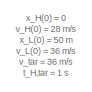
[diagram: root canvas - part 1/4, top left region]
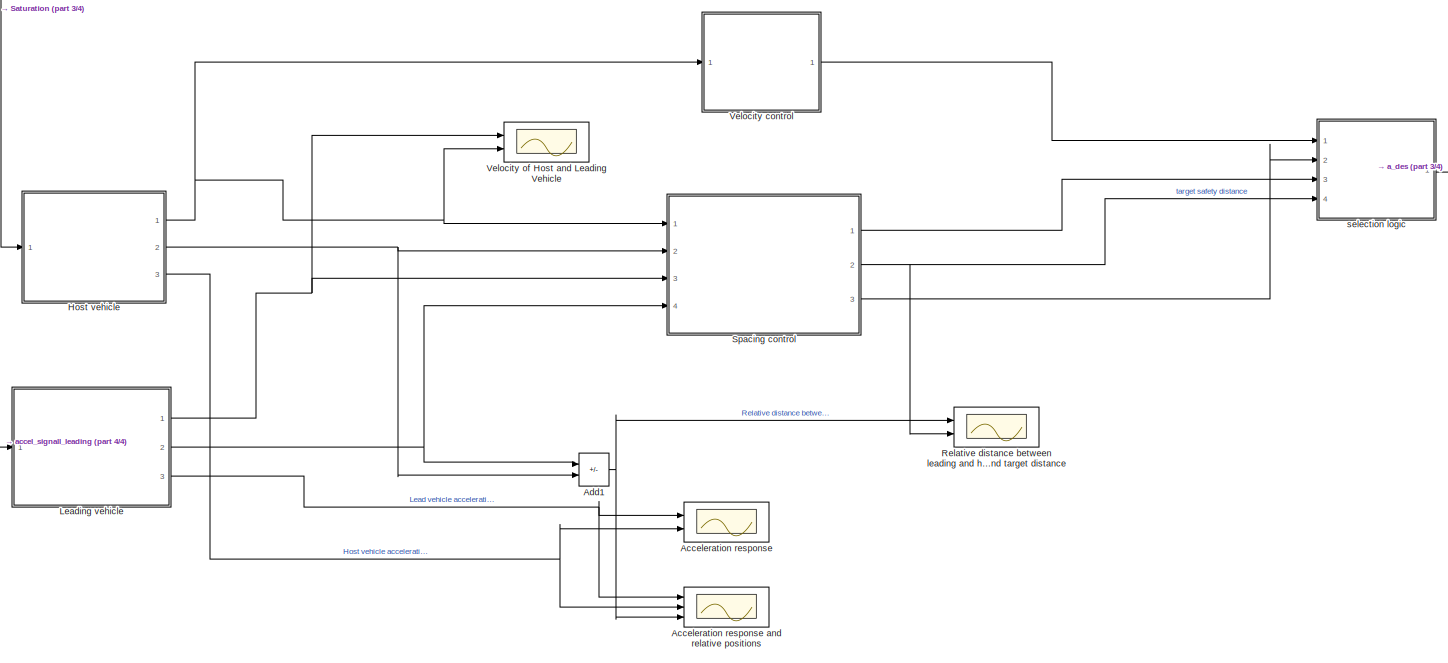
[diagram: root canvas - part 2/4, central region]
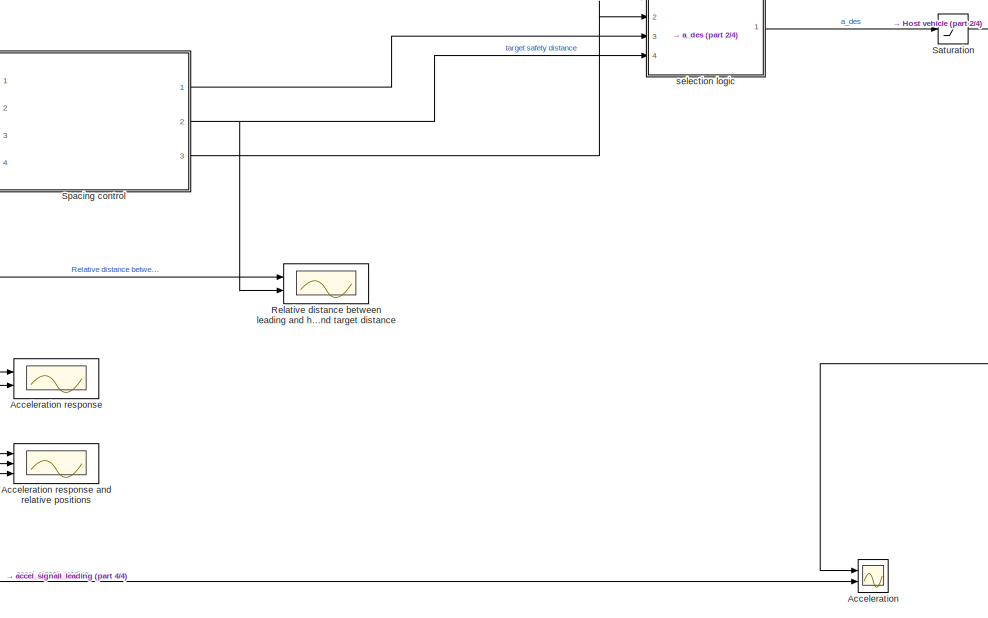
[diagram: root canvas - part 3/4, bottom right region]
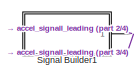
[diagram: root canvas - part 4/4, bottom left region]
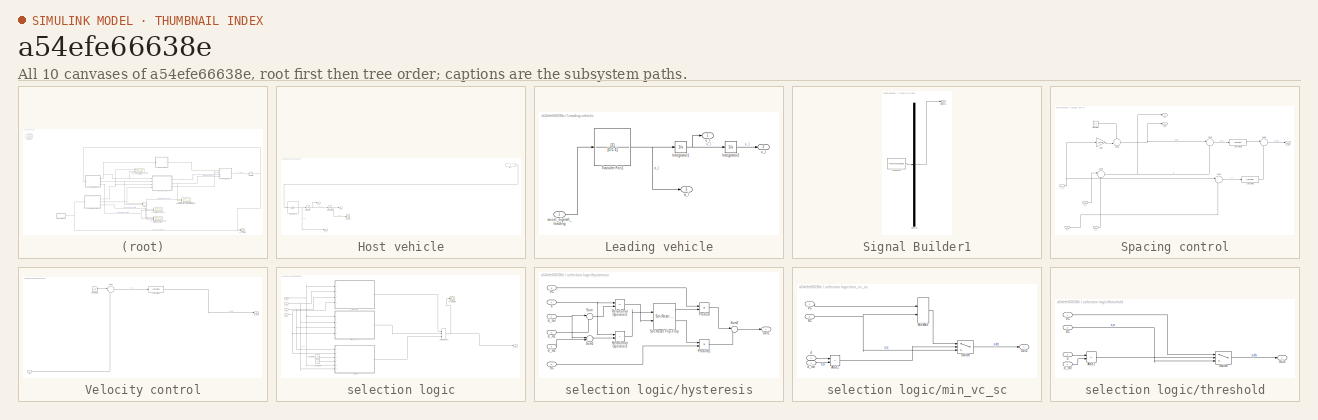
[diagram: thumbnail index - all 10 canvases of the model, root first then tree order]
MODEL slx_a54efe66638e
KIND model
CONFIG AbsTol = auto
CONFIG EnableMultiTasking = off
CONFIG FixedStep = auto
CONFIG MaxStep = auto
CONFIG MinStep = auto
CONFIG RelTol = 1e-12
CONFIG SampleTimeConstraint = Unconstrained
CONFIG SolverName = VariableStepAuto
CONFIG StartTime = 0.0
CONFIG StopTime = 70
WORKSPACE source: mxarray member
WORKSPACE d_tar = 20
BLOCK [Scope] Acceleration
  Floating = off
  NumInputPorts = 2
  Ports = [2]
  ScopeSpecificationString = Simulink.scopes.TimeScopeBlockCfg('CurrentConfiguration', extmgr.ConfigurationSet(extmgr.Configuration('Core','General UI',true),extmgr.Configuration('Core','Source UI',true),extmgr.Configuration('Sources','WiredSimulink',true,'DataLoggingVariableName','ScopeData7'),extmgr.Configuration('Visuals','Time Domain',true,'SerializedDisplays',{struct('MinYLimReal','-3.875','MaxYLimReal','4.875','YLabelRe...<+1456ch>
BLOCK [Scope] Acceleration response
  Floating = off
  NumInputPorts = 2
  Ports = [2]
  ScopeSpecificationString = Simulink.scopes.TimeScopeBlockCfg('CurrentConfiguration', extmgr.ConfigurationSet(extmgr.Configuration('Core','General UI',true),extmgr.Configuration('Core','Source UI',true),extmgr.Configuration('Sources','WiredSimulink',true,'DataLoggingVariableName','ScopeData3'),extmgr.Configuration('Visuals','Time Domain',true,'SerializedDisplays',{struct('MinYLimReal','-3.69425','MaxYLimReal','3.68051','YLab...<+1527ch>
BLOCK [Scope] Acceleration response and relative positions
  Floating = off
  NumInputPorts = 3
  Ports = [3]
  ScopeSpecificationString = Simulink.scopes.TimeScopeBlockCfg('CurrentConfiguration', extmgr.ConfigurationSet(extmgr.Configuration('Core','General UI',true),extmgr.Configuration('Core','Source UI',true),extmgr.Configuration('Sources','WiredSimulink',true,'DataLoggingVariableName','ScopeData4'),extmgr.Configuration('Visuals','Time Domain',true,'SerializedDisplays',{struct('MinYLimReal','-10.49598','MaxYLimReal','74.49516','YL...<+1618ch>
BLOCK [Sum] Add1
  IconShape = rectangular
  Inputs = +-
  Ports = [2, 1]
BLOCK [SubSystem] Host vehicle
  Ports = [1, 3]
  RequestExecContextInheritance = off
BLOCK [Inport] Host vehicle/In1
BLOCK [Integrator] Host vehicle/Integrator
  InitialCondition = v_H0
  Ports = [1, 1]
BLOCK [Integrator] Host vehicle/Integrator3
  InitialCondition = x_H0
  Ports = [1, 1]
BLOCK [Scope] Host vehicle/Scope
  Floating = off
  NumInputPorts = 1
  Ports = [1]
  ScopeSpecificationString = Simulink.scopes.TimeScopeBlockCfg('CurrentConfiguration', extmgr.ConfigurationSet(extmgr.Configuration('Core','General UI',true),extmgr.Configuration('Core','Source UI',true),extmgr.Configuration('Sources','WiredSimulink',true),extmgr.Configuration('Visuals','Time Domain',true,'SerializedDisplays',{struct('MinYLimReal','-289.40886','MaxYLimReal','2604.67977','YLabelReal','','MinYLimMag',' 0.00000'...<+1370ch>
BLOCK [TransferFcn] Host vehicle/Transfer Fcn
  Denominator = [0.5 1]
BLOCK [Outport] Host vehicle/a_h
  Port = 3
  VectorParamsAs1DForOutWhenUnconnected = off
BLOCK [Outport] Host vehicle/v_h
  VectorParamsAs1DForOutWhenUnconnected = off
BLOCK [Outport] Host vehicle/x_h
  Port = 2
  VectorParamsAs1DForOutWhenUnconnected = off
BLOCK [SubSystem] Leading vehicle
  Ports = [1, 3]
  RequestExecContextInheritance = off
BLOCK [Integrator] Leading vehicle/Integrator1
  InitialCondition = v_L0
  Ports = [1, 1]
BLOCK [Integrator] Leading vehicle/Integrator2
  InitialCondition = x_L0
  Ports = [1, 1]
BLOCK [TransferFcn] Leading vehicle/Transfer Fcn1
  Denominator = [0.5 1]
BLOCK [Outport] Leading vehicle/a_l
  Port = 3
  VectorParamsAs1DForOutWhenUnconnected = off
BLOCK [Inport] Leading vehicle/accel_signall_leading
BLOCK [Outport] Leading vehicle/v_l
  VectorParamsAs1DForOutWhenUnconnected = off
BLOCK [Outport] Leading vehicle/x_l
  Port = 2
  VectorParamsAs1DForOutWhenUnconnected = off
BLOCK [Scope] Relative distance between leading and host and target distance
  Floating = off
  NumInputPorts = 2
  Ports = [2]
  ScopeSpecificationString = Simulink.scopes.TimeScopeBlockCfg('CurrentConfiguration', extmgr.ConfigurationSet(extmgr.Configuration('Core','General UI',true),extmgr.Configuration('Core','Source UI',true),extmgr.Configuration('Sources','WiredSimulink',true,'DataLoggingVariableName','ScopeData2'),extmgr.Configuration('Visuals','Time Domain',true,'SerializedDisplays',{struct('MinYLimReal','22.89032','MaxYLimReal','70.78557','YLa...<+1535ch>
BLOCK [Saturate] Saturation
  LowerLimit = -3
  UpperLimit = 5
BLOCK [SubSystem] Signal Builder1
  ClipboardFcn = sigbuilder_block('clipboard');
  CloseFcn = sigbuilder_block('close');
  ContinueFcn = sigbuilder_block('continue');
  CopyFcn = sigbuilder_block('copy');
  DeleteFcn = sigbuilder_block('delete');
  LoadFcn = sigbuilder_block('load');
  MaskHideContents = on
  ModelCloseFcn = sigbuilder_block('modelClose');
  NameChangeFcn = sigbuilder_block('namechange');
  OpenFcn = sigbuilder_block('open',[53.4 79.2 1033.2 459.6 ]);
  PauseFcn = sigbuilder_block('pause');
  Ports = [0, 1]
  PreSaveFcn = sigbuilder_block('preSave');
  RequestExecContextInheritance = off
  StartFcn = sigbuilder_block('start');
  StopFcn = sigbuilder_block('stop');
  Tag = STV Subsys
BLOCK [Demux] Signal Builder1/Demux
  DisplayOption = none
  Outputs = 1
  Ports = [1, 1]
  Tag = STV Demux
BLOCK [FromWorkspace] Signal Builder1/FromWs
  Tag = STV FromWs
  VariableName = tuvar
BLOCK [Outport] Signal Builder1/Signal 1
  Tag = STV Outport
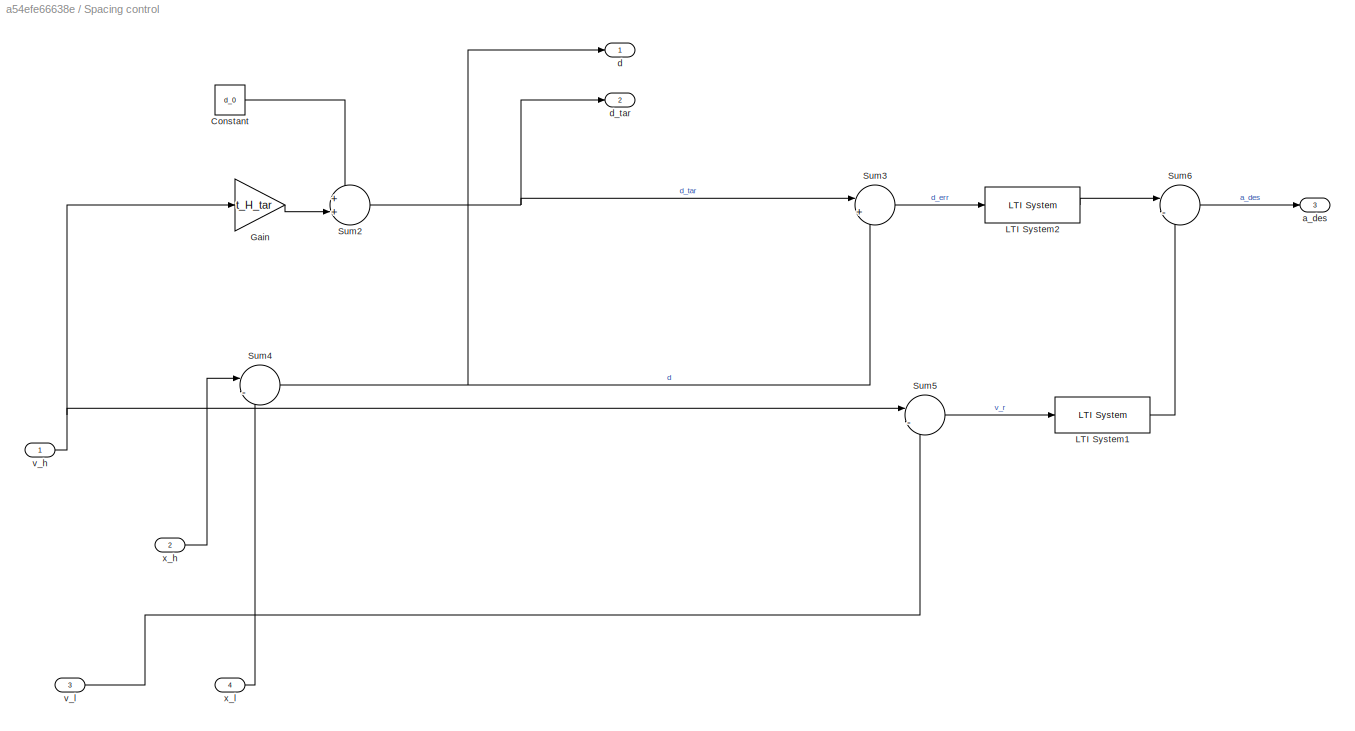
BLOCK [SubSystem] Spacing control
  Ports = [4, 3]
  RequestExecContextInheritance = off
BLOCK [Constant] Spacing control/Constant
  Value = d_0
BLOCK [Gain] Spacing control/Gain
  Gain = t_H_tar
BLOCK [Reference] Spacing control/LTI System1  REF=cstblocks/LTI System
  Ports = [1, 1]
  SourceBlock = cstblocks/LTI System
  SourceProductBaseCode = CT
  SourceType = LTI Block
BLOCK [Reference] Spacing control/LTI System2  REF=cstblocks/LTI System
  Ports = [1, 1]
  SourceBlock = cstblocks/LTI System
  SourceProductBaseCode = CT
  SourceType = LTI Block
BLOCK [Sum] Spacing control/Sum2
  Inputs = ++|
  Ports = [2, 1]
BLOCK [Sum] Spacing control/Sum3
  Inputs = |+-
  Ports = [2, 1]
BLOCK [Sum] Spacing control/Sum4
  Inputs = |-+
  Ports = [2, 1]
BLOCK [Sum] Spacing control/Sum5
  Inputs = |-+
  Ports = [2, 1]
BLOCK [Sum] Spacing control/Sum6
  Inputs = |-+
  Ports = [2, 1]
BLOCK [Outport] Spacing control/a_des
  Port = 3
  VectorParamsAs1DForOutWhenUnconnected = off
BLOCK [Outport] Spacing control/d
  VectorParamsAs1DForOutWhenUnconnected = off
BLOCK [Outport] Spacing control/d_tar
  Port = 2
  VectorParamsAs1DForOutWhenUnconnected = off
BLOCK [Inport] Spacing control/v_h
BLOCK [Inport] Spacing control/v_l
  Port = 3
BLOCK [Inport] Spacing control/x_h
  Port = 2
BLOCK [Inport] Spacing control/x_l
  Port = 4
BLOCK [SubSystem] Velocity control
  Ports = [1, 1]
  RequestExecContextInheritance = off
BLOCK [Constant] Velocity control/Constant1
  Value = v_tar
BLOCK [Reference] Velocity control/LTI System  REF=cstblocks/LTI System
  Ports = [1, 1]
  SourceBlock = cstblocks/LTI System
  SourceProductBaseCode = CT
  SourceType = LTI Block
BLOCK [Sum] Velocity control/Sum1
  Inputs = |+-
  Ports = [2, 1]
BLOCK [Outport] Velocity control/a_des
  VectorParamsAs1DForOutWhenUnconnected = off
BLOCK [Inport] Velocity control/vh
BLOCK [Scope] Velocity of Host and Leading Vehicle
  Floating = off
  NumInputPorts = 2
  Ports = [2]
  ScopeSpecificationString = Simulink.scopes.TimeScopeBlockCfg('CurrentConfiguration', extmgr.ConfigurationSet(extmgr.Configuration('Core','General UI',true),extmgr.Configuration('Core','Source UI',true),extmgr.Configuration('Sources','WiredSimulink',true,'DataLoggingVariableName','ScopeData1'),extmgr.Configuration('Visuals','Time Domain',true,'SerializedDisplays',{struct('MinYLimReal','22.89032','MaxYLimReal','70.78557','YLa...<+1508ch>
BLOCK [SubSystem] selection logic
  Ports = [4, 1]
  RequestExecContextInheritance = off
BLOCK [Scope] selection logic/Acceleration
  Floating = off
  NumInputPorts = 1
  Ports = [1]
  ScopeSpecificationString = Simulink.scopes.TimeScopeBlockCfg('CurrentConfiguration', extmgr.ConfigurationSet(extmgr.Configuration('Core','General UI',true),extmgr.Configuration('Core','Source UI',true),extmgr.Configuration('Sources','WiredSimulink',true,'DataLoggingVariableName','ScopeData1'),extmgr.Configuration('Visuals','Time Domain',true,'SerializedDisplays',{struct('MinYLimReal','-3.875','MaxYLimReal','4.875','YLabelRe...<+1471ch>
BLOCK [Constant] selection logic/Constant2
  Value = d_m1
BLOCK [Constant] selection logic/Constant3
  Value = d_m2
BLOCK [VariantSource] selection logic/Variant Source
  Ports = [3, 1]
BLOCK [Outport] selection logic/a_des
  VectorParamsAs1DForOutWhenUnconnected = off
BLOCK [Inport] selection logic/a_sc
  Port = 2
BLOCK [Inport] selection logic/a_vc
BLOCK [Inport] selection logic/d
  Port = 3
BLOCK [Inport] selection logic/d_tar
  Port = 4
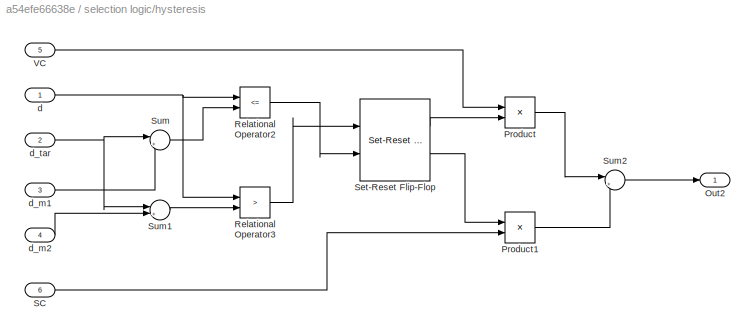
BLOCK [SubSystem] selection logic/hysteresis
  Ports = [6, 1]
  RequestExecContextInheritance = off
BLOCK [Outport] selection logic/hysteresis/Out2
BLOCK [Product] selection logic/hysteresis/Product
  Ports = [2, 1]
BLOCK [Product] selection logic/hysteresis/Product1
  Ports = [2, 1]
BLOCK [RelationalOperator] selection logic/hysteresis/Relational Operator2
  InputSameDT = off
  Operator = <=
  OutDataTypeStr = boolean
  Ports = [2, 1]
  RndMeth = Simplest
BLOCK [RelationalOperator] selection logic/hysteresis/Relational Operator3
  InputSameDT = off
  Operator = >
  OutDataTypeStr = boolean
  Ports = [2, 1]
  RndMeth = Simplest
BLOCK [Inport] selection logic/hysteresis/SC
  Port = 6
BLOCK [Reference] selection logic/hysteresis/Set-Reset Flip-Flop  REF=eeGeneralControl/Set-Reset Flip-Flop
  Ports = [2, 2]
  SourceBlock = eeGeneralControl/Set-Reset Flip-Flop
  SourceProductBaseCode = PS
  SourceType = Set-Reset Flip-Flop
BLOCK [Sum] selection logic/hysteresis/Sum
  Inputs = |+-
  Ports = [2, 1]
BLOCK [Sum] selection logic/hysteresis/Sum1
  Inputs = |++
  Ports = [2, 1]
BLOCK [Sum] selection logic/hysteresis/Sum2
  Inputs = |++
  Ports = [2, 1]
BLOCK [Inport] selection logic/hysteresis/VC
  Port = 5
BLOCK [Inport] selection logic/hysteresis/d
BLOCK [Inport] selection logic/hysteresis/d_m1
  Port = 3
BLOCK [Inport] selection logic/hysteresis/d_m2
  Port = 4
BLOCK [Inport] selection logic/hysteresis/d_tar
  Port = 2
BLOCK [SubSystem] selection logic/min_vc_sc
  Ports = [4, 1]
  RequestExecContextInheritance = off
BLOCK [Sum] selection logic/min_vc_sc/Add1
  IconShape = rectangular
  Inputs = +-
  Ports = [2, 1]
BLOCK [MinMax] selection logic/min_vc_sc/MinMax
  Inputs = 2
  Ports = [2, 1]
BLOCK [Outport] selection logic/min_vc_sc/Out2
BLOCK [Inport] selection logic/min_vc_sc/SC
  Port = 2
BLOCK [Switch] selection logic/min_vc_sc/Switch
  InputSameDT = off
  SaturateOnIntegerOverflow = off
BLOCK [Inport] selection logic/min_vc_sc/VC
BLOCK [Inport] selection logic/min_vc_sc/d
  Port = 3
BLOCK [Inport] selection logic/min_vc_sc/d_tar
  Port = 4
BLOCK [SubSystem] selection logic/threshold
  Ports = [4, 1]
  RequestExecContextInheritance = off
BLOCK [Sum] selection logic/threshold/Add1
  IconShape = rectangular
  Inputs = +-
  Ports = [2, 1]
BLOCK [Outport] selection logic/threshold/Out2
BLOCK [Inport] selection logic/threshold/SC
  Port = 2
BLOCK [Switch] selection logic/threshold/Switch
  InputSameDT = off
  SaturateOnIntegerOverflow = off
BLOCK [Inport] selection logic/threshold/VC
BLOCK [Inport] selection logic/threshold/d
  Port = 3
BLOCK [Inport] selection logic/threshold/d_tar
  Port = 4
ANNOTATION (root): x_H(0) = 0 v_H(0) = 28 m/s x_L(0) = 50 m v_L(0) = 36 m/s v_tar = 36 m/s t_H,tar = 1 s d_0 = 8 m K_v = 0.5 K_d,der = 0.2 K_v,r = 0.4 max a_des = 5 m/s^2 min a_des = -3 m/s^2
NET Add1:1 -> Acceleration response and relative positions:3, Relative distance between leading and host and target distance:1
LINE Host vehicle/In1:1 -> Host vehicle/Transfer Fcn:1
NET Host vehicle/Integrator3:1 -> Host vehicle/Scope:1, Host vehicle/x_h:1
NET Host vehicle/Integrator:1 -> Host vehicle/Integrator3:1, Host vehicle/v_h:1
NET Host vehicle/Transfer Fcn:1 -> Host vehicle/Integrator:1, Host vehicle/a_h:1
NET Host vehicle:1 -> Spacing control:1, Velocity control:1, Velocity of Host and Leading Vehicle:2
NET Host vehicle:2 -> Add1:2, Spacing control:2
NET Host vehicle:3 -> Acceleration response and relative positions:2, Acceleration response:2
NET Leading vehicle/Integrator1:1 -> Leading vehicle/Integrator2:1, Leading vehicle/v_l:1
LINE Leading vehicle/Integrator2:1 -> Leading vehicle/x_l:1
NET Leading vehicle/Transfer Fcn1:1 -> Leading vehicle/Integrator1:1, Leading vehicle/a_l:1
LINE Leading vehicle/accel_signall_leading:1 -> Leading vehicle/Transfer Fcn1:1
NET Leading vehicle:1 -> Spacing control:3, Velocity of Host and Leading Vehicle:1
NET Leading vehicle:2 -> Add1:1, Spacing control:4
NET Leading vehicle:3 -> Acceleration response and relative positions:1, Acceleration response:1
NET Saturation:1 -> Acceleration:1, Host vehicle:1
NET Signal Builder1:1 -> Acceleration:2, Leading vehicle:1
LINE Spacing control/Constant:1 -> Spacing control/Sum2:1
LINE Spacing control/Gain:1 -> Spacing control/Sum2:2
LINE Spacing control/LTI System1:1 -> Spacing control/Sum6:2
LINE Spacing control/LTI System2:1 -> Spacing control/Sum6:1
NET Spacing control/Sum2:1 -> Spacing control/Sum3:1, Spacing control/d_tar:1
LINE Spacing control/Sum3:1 -> Spacing control/LTI System2:1
NET Spacing control/Sum4:1 -> Spacing control/Sum3:2, Spacing control/d:1
LINE Spacing control/Sum5:1 -> Spacing control/LTI System1:1
LINE Spacing control/Sum6:1 -> Spacing control/a_des:1
NET Spacing control/v_h:1 -> Spacing control/Gain:1, Spacing control/Sum5:1
LINE Spacing control/v_l:1 -> Spacing control/Sum5:2
LINE Spacing control/x_h:1 -> Spacing control/Sum4:1
LINE Spacing control/x_l:1 -> Spacing control/Sum4:2
LINE Spacing control:1 -> selection logic:3
NET Spacing control:2 -> Relative distance between leading and host and target distance:2, selection logic:4
LINE Spacing control:3 -> selection logic:2
LINE Velocity control/Constant1:1 -> Velocity control/Sum1:1
LINE Velocity control/LTI System:1 -> Velocity control/a_des:1
LINE Velocity control/Sum1:1 -> Velocity control/LTI System:1
LINE Velocity control/vh:1 -> Velocity control/Sum1:2
LINE Velocity control:1 -> selection logic:1
LINE selection logic/Constant2:1 -> selection logic/hysteresis:3
LINE selection logic/Constant3:1 -> selection logic/hysteresis:4
NET selection logic/Variant Source:1 -> selection logic/Acceleration:1, selection logic/a_des:1
NET selection logic/a_sc:1 -> selection logic/hysteresis:6, selection logic/min_vc_sc:2, selection logic/threshold:2
NET selection logic/a_vc:1 -> selection logic/hysteresis:5, selection logic/min_vc_sc:1, selection logic/threshold:1
NET selection logic/d:1 -> selection logic/hysteresis:1, selection logic/min_vc_sc:3, selection logic/threshold:3
NET selection logic/d_tar:1 -> selection logic/hysteresis:2, selection logic/min_vc_sc:4, selection logic/threshold:4
LINE selection logic/hysteresis/Product1:1 -> selection logic/hysteresis/Sum2:2
LINE selection logic/hysteresis/Product:1 -> selection logic/hysteresis/Sum2:1
LINE selection logic/hysteresis/Relational Operator2:1 -> selection logic/hysteresis/Set-Reset Flip-Flop:2
LINE selection logic/hysteresis/Relational Operator3:1 -> selection logic/hysteresis/Set-Reset Flip-Flop:1
LINE selection logic/hysteresis/SC:1 -> selection logic/hysteresis/Product1:2
LINE selection logic/hysteresis/Set-Reset Flip-Flop:1 -> selection logic/hysteresis/Product:2
LINE selection logic/hysteresis/Set-Reset Flip-Flop:2 -> selection logic/hysteresis/Product1:1
LINE selection logic/hysteresis/Sum1:1 -> selection logic/hysteresis/Relational Operator3:2
LINE selection logic/hysteresis/Sum2:1 -> selection logic/hysteresis/Out2:1
LINE selection logic/hysteresis/Sum:1 -> selection logic/hysteresis/Relational Operator2:2
LINE selection logic/hysteresis/VC:1 -> selection logic/hysteresis/Product:1
NET selection logic/hysteresis/d:1 -> selection logic/hysteresis/Relational Operator2:1, selection logic/hysteresis/Relational Operator3:1
LINE selection logic/hysteresis/d_m1:1 -> selection logic/hysteresis/Sum:2
LINE selection logic/hysteresis/d_m2:1 -> selection logic/hysteresis/Sum1:2
NET selection logic/hysteresis/d_tar:1 -> selection logic/hysteresis/Sum1:1, selection logic/hysteresis/Sum:1
LINE selection logic/hysteresis:1 -> selection logic/Variant Source:3
LINE selection logic/min_vc_sc/Add1:1 -> selection logic/min_vc_sc/Switch:2
LINE selection logic/min_vc_sc/MinMax:1 -> selection logic/min_vc_sc/Switch:1
NET selection logic/min_vc_sc/SC:1 -> selection logic/min_vc_sc/MinMax:2, selection logic/min_vc_sc/Switch:3
LINE selection logic/min_vc_sc/Switch:1 -> selection logic/min_vc_sc/Out2:1
LINE selection logic/min_vc_sc/VC:1 -> selection logic/min_vc_sc/MinMax:1
LINE selection logic/min_vc_sc/d:1 -> selection logic/min_vc_sc/Add1:1
LINE selection logic/min_vc_sc/d_tar:1 -> selection logic/min_vc_sc/Add1:2
LINE selection logic/min_vc_sc:1 -> selection logic/Variant Source:2
LINE selection logic/threshold/Add1:1 -> selection logic/threshold/Switch:2
LINE selection logic/threshold/SC:1 -> selection logic/threshold/Switch:3
LINE selection logic/threshold/Switch:1 -> selection logic/threshold/Out2:1
LINE selection logic/threshold/VC:1 -> selection logic/threshold/Switch:1
LINE selection logic/threshold/d:1 -> selection logic/threshold/Add1:1
LINE selection logic/threshold/d_tar:1 -> selection logic/threshold/Add1:2
LINE selection logic/threshold:1 -> selection logic/Variant Source:1
LINE selection logic:1 -> Saturation:1
note: NET lines group one-source signal fan-out (src -> all destinations, sorted); 1:1 wires keep LINE
